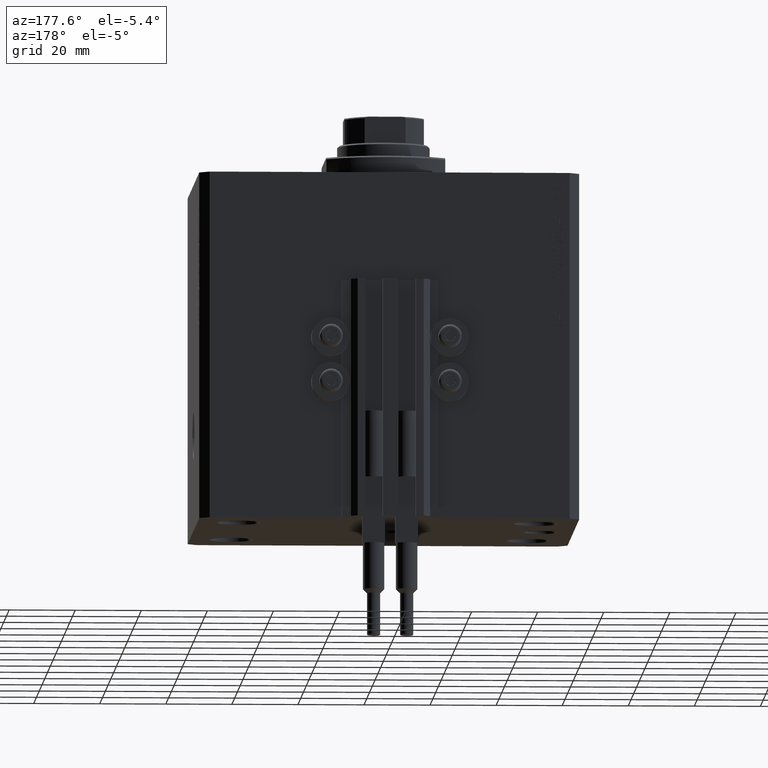
[diagram: clean part render]
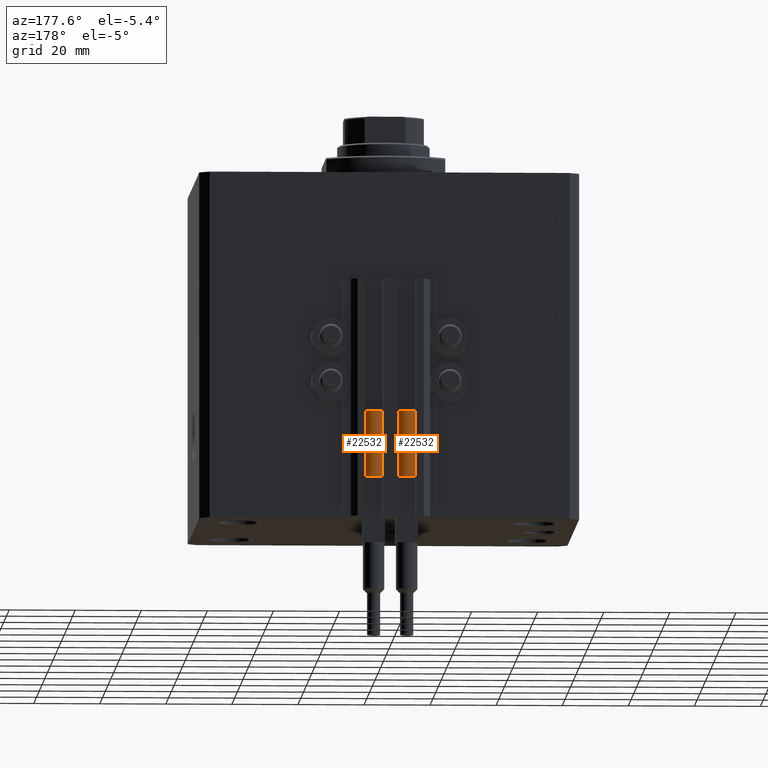
[diagram: same view with one multi-face feature highlighted, each face labeled with its STEP entity id]
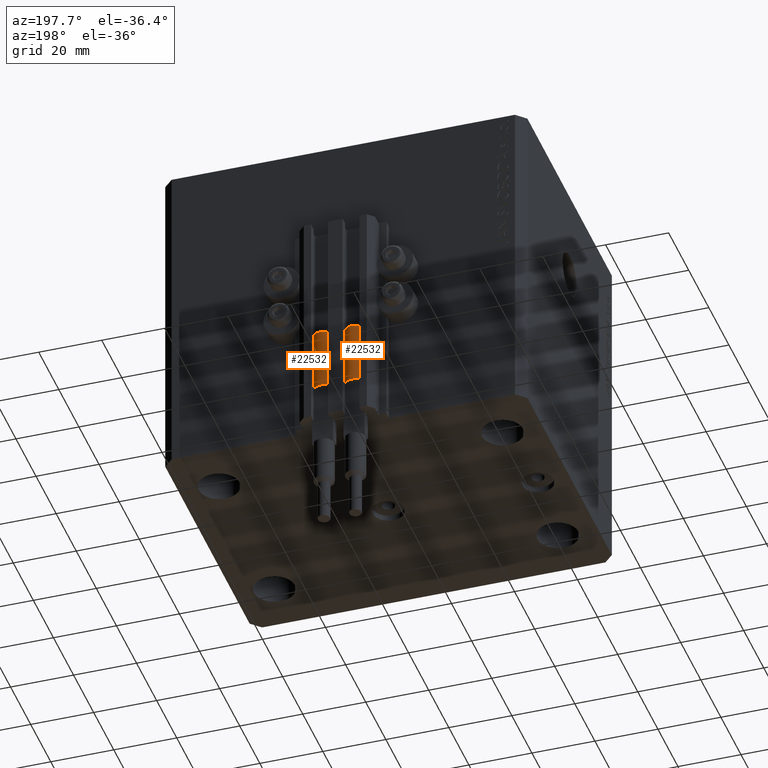
[diagram: same view with one multi-face feature highlighted, each face labeled with its STEP entity id]
A machine part, auxiliary view. The highlighted faces form ONE feature: a constant-radius fillet chain: 2 tangent blend faces with common blend radius 3.4 mm. The faces share edges in the B-rep.
A second angle (auxiliary view) of the same feature is appended — it is thin or edge-on in the first view.
Their STEP definitions:
[1] entity #22532 (Cylinder):
#1974 = ORIENTED_EDGE ( 'NONE', *, *, #25080, .F. ) ;
#2052 = DIRECTION ( 'NONE',  ( 1.000000000000000000, 0.000000000000000000, 0.000000000000000000 ) ) ;
#3201 = AXIS2_PLACEMENT_3D ( 'NONE', #5239, #20054, #2052 ) ;
#5238 = EDGE_CURVE ( 'NONE', #7439, #28338, #25417, .T. ) ;
#5239 = CARTESIAN_POINT ( 'NONE',  ( 0.000000000000000000, 0.000000000000000000, 20.00000000000000000 ) ) ;
#5540 = CIRCLE ( 'NONE', #3201, 3.400000000000000355 ) ;
#6330 = EDGE_LOOP ( 'NONE', ( #42895, #1974, #25346, #7072, #14169, #46236 ) ) ;
#6605 = CIRCLE ( 'NONE', #14314, 3.400000000000000355 ) ;
#7072 = ORIENTED_EDGE ( 'NONE', *, *, #38154, .F. ) ;
#7439 = VERTEX_POINT ( 'NONE', #8102 ) ;
#8102 = CARTESIAN_POINT ( 'NONE',  ( -3.399999999999999467, -4.915049848600952119E-16, 20.00000000000000000 ) ) ;
#10470 = LINE ( 'NONE', #28746, #44403 ) ;
#12086 = DIRECTION ( 'NONE',  ( 1.000000000000000000, 0.000000000000000000, 0.000000000000000000 ) ) ;
#12622 = DIRECTION ( 'NONE',  ( 1.000000000000000000, 0.000000000000000000, 0.000000000000000000 ) ) ;
#12808 = DIRECTION ( 'NONE',  ( 0.000000000000000000, 0.000000000000000000, 1.000000000000000000 ) ) ;
#13498 = CYLINDRICAL_SURFACE ( 'NONE', #24304, 3.400000000000000355 ) ;
#14169 = ORIENTED_EDGE ( 'NONE', *, *, #5238, .T. ) ;
#14314 = AXIS2_PLACEMENT_3D ( 'NONE', #31083, #12808, #12086 ) ;
#14335 = CIRCLE ( 'NONE', #41558, 3.400000000000000355 ) ;
#19862 = CARTESIAN_POINT ( 'NONE',  ( 3.051229260478471428, -1.500000000000000000, 20.00000000000000000 ) ) ;
#20054 = DIRECTION ( 'NONE',  ( 0.000000000000000000, 0.000000000000000000, 1.000000000000000000 ) ) ;
#21142 = VERTEX_POINT ( 'NONE', #48197 ) ;
#21759 = DIRECTION ( 'NONE',  ( -0.000000000000000000, -0.000000000000000000, -1.000000000000000000 ) ) ;
#21820 = CARTESIAN_POINT ( 'NONE',  ( -3.400000000000000355, 0.000000000000000000, 0.000000000000000000 ) ) ;
#22532 = ADVANCED_FACE ( 'NONE', ( #24710 ), #13498, .T. ) ;
#24217 = DIRECTION ( 'NONE',  ( -0.000000000000000000, -0.000000000000000000, -1.000000000000000000 ) ) ;
#24304 = AXIS2_PLACEMENT_3D ( 'NONE', #28377, #24217, #43223 ) ;
#24710 = FACE_OUTER_BOUND ( 'NONE', #6330, .T. ) ;
#25080 = EDGE_CURVE ( 'NONE', #30431, #21142, #14335, .T. ) ;
#25346 = ORIENTED_EDGE ( 'NONE', *, *, #26716, .F. ) ;
#25417 = LINE ( 'NONE', #40269, #42954 ) ;
#26104 = CARTESIAN_POINT ( 'NONE',  ( 3.400000000000000355, 4.163799117101001052E-16, 0.000000000000000000 ) ) ;
#26716 = EDGE_CURVE ( 'NONE', #28934, #30431, #5540, .T. ) ;
#28338 = VERTEX_POINT ( 'NONE', #21820 ) ;
#28363 = AXIS2_PLACEMENT_3D ( 'NONE', #45970, #38927, #12622 ) ;
#28377 = CARTESIAN_POINT ( 'NONE',  ( 0.000000000000000000, 0.000000000000000000, 20.00000000000000000 ) ) ;
#28746 = CARTESIAN_POINT ( 'NONE',  ( 3.400000000000000355, 4.163799117101001052E-16, 20.00000000000000000 ) ) ;
#28934 = VERTEX_POINT ( 'NONE', #33106 ) ;
#30431 = VERTEX_POINT ( 'NONE', #19862 ) ;
#31083 = CARTESIAN_POINT ( 'NONE',  ( 0.000000000000000000, 0.000000000000000000, 20.00000000000000000 ) ) ;
#31393 = EDGE_CURVE ( 'NONE', #21142, #42717, #10470, .T. ) ;
#33106 = CARTESIAN_POINT ( 'NONE',  ( -3.051229260478471428, -1.500000000000000000, 20.00000000000000000 ) ) ;
#34256 = CARTESIAN_POINT ( 'NONE',  ( 0.000000000000000000, 0.000000000000000000, 20.00000000000000000 ) ) ;
#37889 = EDGE_CURVE ( 'NONE', #28338, #42717, #40021, .T. ) ;
#38154 = EDGE_CURVE ( 'NONE', #7439, #28934, #6605, .T. ) ;
#38927 = DIRECTION ( 'NONE',  ( 0.000000000000000000, 0.000000000000000000, 1.000000000000000000 ) ) ;
#40021 = CIRCLE ( 'NONE', #28363, 3.400000000000000355 ) ;
#40269 = CARTESIAN_POINT ( 'NONE',  ( -3.400000000000000355, 0.000000000000000000, 20.00000000000000000 ) ) ;
#41558 = AXIS2_PLACEMENT_3D ( 'NONE', #34256, #46188, #45699 ) ;
#42717 = VERTEX_POINT ( 'NONE', #26104 ) ;
#42895 = ORIENTED_EDGE ( 'NONE', *, *, #31393, .F. ) ;
#42954 = VECTOR ( 'NONE', #21759, 1000.000000000000000 ) ;
#43223 = DIRECTION ( 'NONE',  ( -1.000000000000000000, 0.000000000000000000, 0.000000000000000000 ) ) ;
#44403 = VECTOR ( 'NONE', #47456, 1000.000000000000000 ) ;
#45699 = DIRECTION ( 'NONE',  ( 1.000000000000000000, 0.000000000000000000, 0.000000000000000000 ) ) ;
#45970 = CARTESIAN_POINT ( 'NONE',  ( 0.000000000000000000, 0.000000000000000000, 0.000000000000000000 ) ) ;
#46188 = DIRECTION ( 'NONE',  ( 0.000000000000000000, 0.000000000000000000, 1.000000000000000000 ) ) ;
#46236 = ORIENTED_EDGE ( 'NONE', *, *, #37889, .T. ) ;
#47456 = DIRECTION ( 'NONE',  ( -0.000000000000000000, -0.000000000000000000, -1.000000000000000000 ) ) ;
#48197 = CARTESIAN_POINT ( 'NONE',  ( 3.400000000000000355, 0.000000000000000000, 20.00000000000000000 ) ) ;
[2] entity #22532 (Cylinder):
#1974 = ORIENTED_EDGE ( 'NONE', *, *, #25080, .F. ) ;
#2052 = DIRECTION ( 'NONE',  ( 1.000000000000000000, 0.000000000000000000, 0.000000000000000000 ) ) ;
#3201 = AXIS2_PLACEMENT_3D ( 'NONE', #5239, #20054, #2052 ) ;
#5238 = EDGE_CURVE ( 'NONE', #7439, #28338, #25417, .T. ) ;
#5239 = CARTESIAN_POINT ( 'NONE',  ( 0.000000000000000000, 0.000000000000000000, 20.00000000000000000 ) ) ;
#5540 = CIRCLE ( 'NONE', #3201, 3.400000000000000355 ) ;
#6330 = EDGE_LOOP ( 'NONE', ( #42895, #1974, #25346, #7072, #14169, #46236 ) ) ;
#6605 = CIRCLE ( 'NONE', #14314, 3.400000000000000355 ) ;
#7072 = ORIENTED_EDGE ( 'NONE', *, *, #38154, .F. ) ;
#7439 = VERTEX_POINT ( 'NONE', #8102 ) ;
#8102 = CARTESIAN_POINT ( 'NONE',  ( -3.399999999999999467, -4.915049848600952119E-16, 20.00000000000000000 ) ) ;
#10470 = LINE ( 'NONE', #28746, #44403 ) ;
#12086 = DIRECTION ( 'NONE',  ( 1.000000000000000000, 0.000000000000000000, 0.000000000000000000 ) ) ;
#12622 = DIRECTION ( 'NONE',  ( 1.000000000000000000, 0.000000000000000000, 0.000000000000000000 ) ) ;
#12808 = DIRECTION ( 'NONE',  ( 0.000000000000000000, 0.000000000000000000, 1.000000000000000000 ) ) ;
#13498 = CYLINDRICAL_SURFACE ( 'NONE', #24304, 3.400000000000000355 ) ;
#14169 = ORIENTED_EDGE ( 'NONE', *, *, #5238, .T. ) ;
#14314 = AXIS2_PLACEMENT_3D ( 'NONE', #31083, #12808, #12086 ) ;
#14335 = CIRCLE ( 'NONE', #41558, 3.400000000000000355 ) ;
#19862 = CARTESIAN_POINT ( 'NONE',  ( 3.051229260478471428, -1.500000000000000000, 20.00000000000000000 ) ) ;
#20054 = DIRECTION ( 'NONE',  ( 0.000000000000000000, 0.000000000000000000, 1.000000000000000000 ) ) ;
#21142 = VERTEX_POINT ( 'NONE', #48197 ) ;
#21759 = DIRECTION ( 'NONE',  ( -0.000000000000000000, -0.000000000000000000, -1.000000000000000000 ) ) ;
#21820 = CARTESIAN_POINT ( 'NONE',  ( -3.400000000000000355, 0.000000000000000000, 0.000000000000000000 ) ) ;
#22532 = ADVANCED_FACE ( 'NONE', ( #24710 ), #13498, .T. ) ;
#24217 = DIRECTION ( 'NONE',  ( -0.000000000000000000, -0.000000000000000000, -1.000000000000000000 ) ) ;
#24304 = AXIS2_PLACEMENT_3D ( 'NONE', #28377, #24217, #43223 ) ;
#24710 = FACE_OUTER_BOUND ( 'NONE', #6330, .T. ) ;
#25080 = EDGE_CURVE ( 'NONE', #30431, #21142, #14335, .T. ) ;
#25346 = ORIENTED_EDGE ( 'NONE', *, *, #26716, .F. ) ;
#25417 = LINE ( 'NONE', #40269, #42954 ) ;
#26104 = CARTESIAN_POINT ( 'NONE',  ( 3.400000000000000355, 4.163799117101001052E-16, 0.000000000000000000 ) ) ;
#26716 = EDGE_CURVE ( 'NONE', #28934, #30431, #5540, .T. ) ;
#28338 = VERTEX_POINT ( 'NONE', #21820 ) ;
#28363 = AXIS2_PLACEMENT_3D ( 'NONE', #45970, #38927, #12622 ) ;
#28377 = CARTESIAN_POINT ( 'NONE',  ( 0.000000000000000000, 0.000000000000000000, 20.00000000000000000 ) ) ;
#28746 = CARTESIAN_POINT ( 'NONE',  ( 3.400000000000000355, 4.163799117101001052E-16, 20.00000000000000000 ) ) ;
#28934 = VERTEX_POINT ( 'NONE', #33106 ) ;
#30431 = VERTEX_POINT ( 'NONE', #19862 ) ;
#31083 = CARTESIAN_POINT ( 'NONE',  ( 0.000000000000000000, 0.000000000000000000, 20.00000000000000000 ) ) ;
#31393 = EDGE_CURVE ( 'NONE', #21142, #42717, #10470, .T. ) ;
#33106 = CARTESIAN_POINT ( 'NONE',  ( -3.051229260478471428, -1.500000000000000000, 20.00000000000000000 ) ) ;
#34256 = CARTESIAN_POINT ( 'NONE',  ( 0.000000000000000000, 0.000000000000000000, 20.00000000000000000 ) ) ;
#37889 = EDGE_CURVE ( 'NONE', #28338, #42717, #40021, .T. ) ;
#38154 = EDGE_CURVE ( 'NONE', #7439, #28934, #6605, .T. ) ;
#38927 = DIRECTION ( 'NONE',  ( 0.000000000000000000, 0.000000000000000000, 1.000000000000000000 ) ) ;
#40021 = CIRCLE ( 'NONE', #28363, 3.400000000000000355 ) ;
#40269 = CARTESIAN_POINT ( 'NONE',  ( -3.400000000000000355, 0.000000000000000000, 20.00000000000000000 ) ) ;
#41558 = AXIS2_PLACEMENT_3D ( 'NONE', #34256, #46188, #45699 ) ;
#42717 = VERTEX_POINT ( 'NONE', #26104 ) ;
#42895 = ORIENTED_EDGE ( 'NONE', *, *, #31393, .F. ) ;
#42954 = VECTOR ( 'NONE', #21759, 1000.000000000000000 ) ;
#43223 = DIRECTION ( 'NONE',  ( -1.000000000000000000, 0.000000000000000000, 0.000000000000000000 ) ) ;
#44403 = VECTOR ( 'NONE', #47456, 1000.000000000000000 ) ;
#45699 = DIRECTION ( 'NONE',  ( 1.000000000000000000, 0.000000000000000000, 0.000000000000000000 ) ) ;
#45970 = CARTESIAN_POINT ( 'NONE',  ( 0.000000000000000000, 0.000000000000000000, 0.000000000000000000 ) ) ;
#46188 = DIRECTION ( 'NONE',  ( 0.000000000000000000, 0.000000000000000000, 1.000000000000000000 ) ) ;
#46236 = ORIENTED_EDGE ( 'NONE', *, *, #37889, .T. ) ;
#47456 = DIRECTION ( 'NONE',  ( -0.000000000000000000, -0.000000000000000000, -1.000000000000000000 ) ) ;
#48197 = CARTESIAN_POINT ( 'NONE',  ( 3.400000000000000355, 0.000000000000000000, 20.00000000000000000 ) ) ;